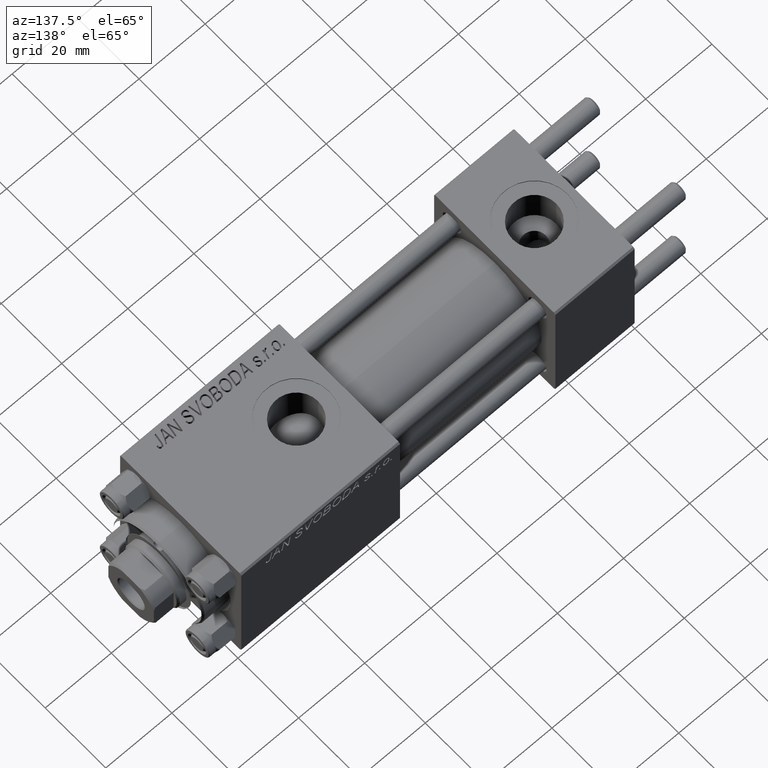
[diagram: clean part render]
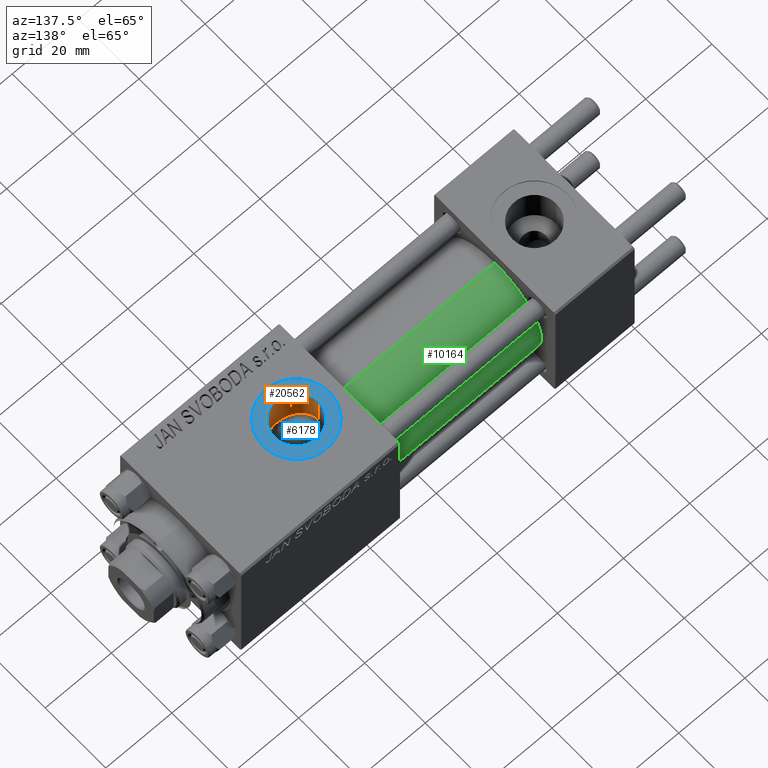
[diagram: same view with three faces highlighted in distinct colors, each labeled with its STEP entity id]
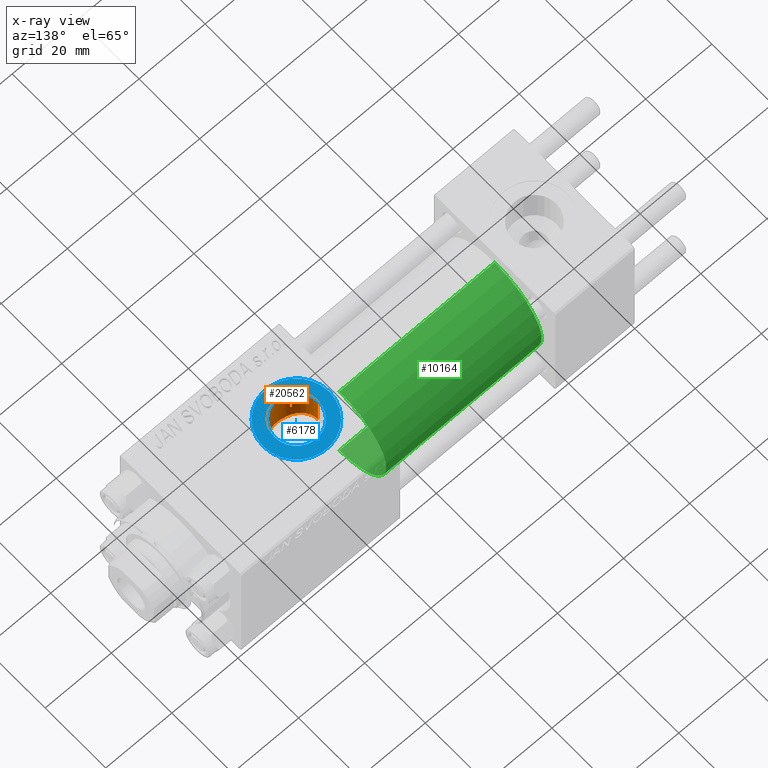
[diagram: x-ray of the same camera — body ghosted, the three highlighted faces saturated]
A machine part, auxiliary view with three faces highlighted in distinct colors.
The next image is the same camera in x-ray (body ghosted, the three faces saturated) — at least one of them is partly hidden behind the body in this view.
Their STEP definitions:

[orange] entity #20562 — the highlighted cylindrical surface (edge-blend (fillet) strip) has radius 6.58 mm, axis along (0, 0, -1).
#654 = CARTESIAN_POINT ( 'NONE',  ( 82.25327158685063011, -6.347078162380216604, 7.727766182684421281 ) ) ;
#1384 = CARTESIAN_POINT ( 'NONE',  ( 79.29730408322323854, -4.618177244596259889, 8.875509752877485781 ) ) ;
#1447 = CARTESIAN_POINT ( 'NONE',  ( 90.58000000000154728, -9.289058821376597120E-16, 42.80000000000000426 ) ) ;
#1591 = VECTOR ( 'NONE', #16905, 1000.000000000000000 ) ;
#2003 = CARTESIAN_POINT ( 'NONE',  ( 90.46247493449395449, -1.278752734038846484, 14.94875937294843737 ) ) ;
#2477 = EDGE_CURVE ( 'NONE', #19589, #5026, #33546, .T. ) ;
#2504 = CARTESIAN_POINT ( 'NONE',  ( 89.47667727346387778, -3.667500690329295931, 9.309199649381490360 ) ) ;
#3873 = VECTOR ( 'NONE', #13058, 1000.000000000000000 ) ;
#4184 = CARTESIAN_POINT ( 'NONE',  ( 89.01171256368644435, -4.281038711601321545, 9.043476487246550732 ) ) ;
#4424 = CARTESIAN_POINT ( 'NONE',  ( 81.50365122394816808, -6.100731835174567408, 7.925108619061488113 ) ) ;
#4915 = CARTESIAN_POINT ( 'NONE',  ( 85.83530013697877337, -6.321933289868085559, 7.748495657718812879 ) ) ;
#5026 = VERTEX_POINT ( 'NONE', #5954 ) ;
#5167 = CARTESIAN_POINT ( 'NONE',  ( 77.78468472322818172, -2.169203254887546617, 9.763745855050723677 ) ) ;
#5782 = CARTESIAN_POINT ( 'NONE',  ( 90.58000000000154728, 1.836897619300433381E-15, 15.00000000000000000 ) ) ;
#5954 = CARTESIAN_POINT ( 'NONE',  ( 77.41999999999846693, 1.225496641077837722E-15, 9.999999999999998224 ) ) ;
#6030 = CARTESIAN_POINT ( 'NONE',  ( 90.30000000000001137, -1.899052395280420136, 14.87930105885285670 ) ) ;
#6281 = CARTESIAN_POINT ( 'NONE',  ( 90.03601729897108896, -2.648259396322893089, 9.649752199410302822 ) ) ;
#6617 = CARTESIAN_POINT ( 'NONE',  ( 84.00000000000000000, -1.734723475976806897E-15, 42.80000000000000426 ) ) ;
#7120 = DIRECTION ( 'NONE',  ( 0.000000000000000000, 0.000000000000000000, -1.000000000000000000 ) ) ;
#7165 = EDGE_CURVE ( 'NONE', #47399, #32461, #40066, .T. ) ;
#7976 = CARTESIAN_POINT ( 'NONE',  ( 88.34134544482054707, -4.948221379670047604, 8.691185487698470880 ) ) ;
#8219 = CARTESIAN_POINT ( 'NONE',  ( 78.79875737437667738, -4.034886358906389248, 9.151392050136836431 ) ) ;
#8715 = CARTESIAN_POINT ( 'NONE',  ( 80.16020215073048405, -5.356874842517142632, 8.448716332623810388 ) ) ;
#8843 = AXIS2_PLACEMENT_3D ( 'NONE', #24237, #47433, #18409 ) ;
#9459 = VECTOR ( 'NONE', #48429, 1000.000000000000000 ) ;
#11614 = EDGE_CURVE ( 'NONE', #31403, #42262, #29018, .T. ) ;
#11650 = EDGE_CURVE ( 'NONE', #32461, #42262, #35703, .T. ) ;
#11829 = EDGE_CURVE ( 'NONE', #47399, #19589, #31399, .T. ) ;
#12255 = CARTESIAN_POINT ( 'NONE',  ( 78.91948560029506154, -4.185857250486422210, 9.083179932574980242 ) ) ;
#12495 = CARTESIAN_POINT ( 'NONE',  ( 83.43610688730976221, -6.558932760434257325, 7.548550817887899278 ) ) ;
#12742 = CARTESIAN_POINT ( 'NONE',  ( 77.45763783829498550, -0.8084208477571691587, 9.975121118623741623 ) ) ;
#13058 = DIRECTION ( 'NONE',  ( 0.000000000000000000, 0.000000000000000000, -1.000000000000000000 ) ) ;
#13167 = CARTESIAN_POINT ( 'NONE',  ( 90.58000000000154728, 1.836897619300433381E-15, 15.00000000000000000 ) ) ;
#13185 = B_SPLINE_CURVE_WITH_KNOTS ( 'NONE', 3,
 ( #30952, #17657, #6281, #21693, #2504, #4184, #31439, #7976, #20089, #23633, #20335, #31928, #23870, #24369, #43299, #4915, #31691, #35461, #47069, #19840, #46831, #12495, #47310, #23384, #35215, #654, #39012, #4424, #16049, #27895, #8715, #39758, #1384, #12255, #8219, #27658, #27165, #24116, #16299, #5167, #42810, #16789, #32176, #12742, #28155, #39502 ),
 .UNSPECIFIED., .F., .F.,
 ( 4, 2, 2, 2, 2, 2, 2, 2, 2, 2, 2, 2, 2, 2, 2, 2, 2, 2, 2, 2, 2, 2, 4 ),
 ( 0.000000000000000000, 0.001207791230099372441, 0.002415582460198744882, 0.003623373690298115155, 0.004227269305347786631, 0.004831164920397457672, 0.006038956150496800623, 0.006642851765546489880, 0.007246747380596180003, 0.008454538610695601017, 0.009058434225745329305, 0.009662329840795061062, 0.01026622545584479108, 0.01087012107089451937, 0.01207791230099397942, 0.01328570353109343946, 0.01449349476119290124, 0.01509739037624264514, 0.01570128599129239078, 0.01690907722139185429, 0.01751297283644158778, 0.01811686845149132127, 0.01932465968159079173 ),
 .UNSPECIFIED. ) ;
#13521 = CARTESIAN_POINT ( 'NONE',  ( 90.30000000000001137, -1.899052395280420136, 9.818024241158690657 ) ) ;
#13530 = ORIENTED_EDGE ( 'NONE', *, *, #23808, .T. ) ;
#16049 = CARTESIAN_POINT ( 'NONE',  ( 81.15150766959031614, -5.943877247083126925, 8.044991576418468071 ) ) ;
#16299 = CARTESIAN_POINT ( 'NONE',  ( 77.99714712711040931, -2.723766581249583485, 9.629423614267258458 ) ) ;
#16789 = CARTESIAN_POINT ( 'NONE',  ( 77.61241581301695192, -1.592248641449762747, 9.874366003595781649 ) ) ;
#16905 = DIRECTION ( 'NONE',  ( -0.000000000000000000, -0.000000000000000000, 1.000000000000000000 ) ) ;
#17657 = CARTESIAN_POINT ( 'NONE',  ( 90.18384735178129574, -2.284382302762963501, 9.743491762341799145 ) ) ;
#18234 = DIRECTION ( 'NONE',  ( -1.000000000000000000, 0.000000000000000000, 0.000000000000000000 ) ) ;
#18409 = DIRECTION ( 'NONE',  ( 1.000000000000000000, 0.000000000000000000, 0.000000000000000000 ) ) ;
#19203 = CARTESIAN_POINT ( 'NONE',  ( 90.58000000000154728, -9.289058821376599092E-16, 19.80000000000000071 ) ) ;
#19589 = VERTEX_POINT ( 'NONE', #27275 ) ;
#19840 = CARTESIAN_POINT ( 'NONE',  ( 84.04743762832036680, -6.582974628388996940, 7.527585999843090292 ) ) ;
#20089 = CARTESIAN_POINT ( 'NONE',  ( 88.19718467613775204, -5.071121963172631197, 8.619888602053425330 ) ) ;
#20335 = CARTESIAN_POINT ( 'NONE',  ( 87.74050804270864035, -5.416766998257490862, 8.406790300727948306 ) ) ;
#20562 = ADVANCED_FACE ( 'NONE', ( #30598 ), #22274, .F. ) ;
#21693 = CARTESIAN_POINT ( 'NONE',  ( 89.68316260257665817, -3.338928794743214468, 9.433056230293079381 ) ) ;
#22274 = CYLINDRICAL_SURFACE ( 'NONE', #46423, 6.580000000001542837 ) ;
#23112 = ORIENTED_EDGE ( 'NONE', *, *, #7165, .T. ) ;
#23384 = CARTESIAN_POINT ( 'NONE',  ( 82.83871781191031403, -6.479820246555592966, 7.616654439233103702 ) ) ;
#23633 = CARTESIAN_POINT ( 'NONE',  ( 87.89699318866286148, -5.305288046703262594, 8.477775428654018341 ) ) ;
#23808 = EDGE_CURVE ( 'NONE', #31403, #5026, #13185, .T. ) ;
#23867 = ORIENTED_EDGE ( 'NONE', *, *, #2477, .F. ) ;
#23870 = CARTESIAN_POINT ( 'NONE',  ( 86.92434068310684836, -5.907044672534588869, 8.071096920454994716 ) ) ;
#23913 = ORIENTED_EDGE ( 'NONE', *, *, #11614, .F. ) ;
#24116 = CARTESIAN_POINT ( 'NONE',  ( 78.16834223545102134, -3.071777053897142729, 9.522948337697433985 ) ) ;
#24237 = CARTESIAN_POINT ( 'NONE',  ( 84.00000000000000000, -1.734723475976806897E-15, 19.80000000000000071 ) ) ;
#24369 = CARTESIAN_POINT ( 'NONE',  ( 86.39211994537743067, -6.132805105780794186, 7.899218132206713427 ) ) ;
#27165 = CARTESIAN_POINT ( 'NONE',  ( 78.46622740148208663, -3.565203004854784474, 9.344512687240586146 ) ) ;
#27275 = CARTESIAN_POINT ( 'NONE',  ( 77.41999999999846693, -1.734723475976806897E-15, 19.80000000000000071 ) ) ;
#27658 = CARTESIAN_POINT ( 'NONE',  ( 78.57242859662287060, -3.724876030303978069, 9.281895439158068584 ) ) ;
#27895 = CARTESIAN_POINT ( 'NONE',  ( 80.48004077057568395, -5.572564248888139282, 8.306509127488531874 ) ) ;
#28155 = CARTESIAN_POINT ( 'NONE',  ( 77.41999999999848114, -0.4081853129699585803, 10.00000000000000711 ) ) ;
#28278 = CARTESIAN_POINT ( 'NONE',  ( 90.30000000000001137, -1.899052395280420136, 42.80000000000000426 ) ) ;
#29018 = LINE ( 'NONE', #28278, #1591 ) ;
#30598 = FACE_OUTER_BOUND ( 'NONE', #39731, .T. ) ;
#30952 = CARTESIAN_POINT ( 'NONE',  ( 90.30000000000001137, -1.899052395280420136, 9.818024241158690657 ) ) ;
#31399 = CIRCLE ( 'NONE', #8843, 6.580000000001542837 ) ;
#31403 = VERTEX_POINT ( 'NONE', #13521 ) ;
#31439 = CARTESIAN_POINT ( 'NONE',  ( 88.75695250607545006, -4.561896889324866144, 8.903678834413629062 ) ) ;
#31691 = CARTESIAN_POINT ( 'NONE',  ( 85.64143006621837628, -6.375121249720390182, 7.704616833470068649 ) ) ;
#31928 = CARTESIAN_POINT ( 'NONE',  ( 87.26053252520590320, -5.728070196491263921, 8.200680661955367157 ) ) ;
#32176 = CARTESIAN_POINT ( 'NONE',  ( 77.56705469300284506, -1.397686090543303283, 9.903818455115036556 ) ) ;
#32461 = VERTEX_POINT ( 'NONE', #13167 ) ;
#33047 = CARTESIAN_POINT ( 'NONE',  ( 77.41999999999846693, -1.734723475976806897E-15, 42.80000000000000426 ) ) ;
#33546 = LINE ( 'NONE', #33047, #9459 ) ;
#35215 = CARTESIAN_POINT ( 'NONE',  ( 82.64228046384747017, -6.441510615516904181, 7.649229527461429257 ) ) ;
#35299 = ORIENTED_EDGE ( 'NONE', *, *, #11829, .F. ) ;
#35461 = CARTESIAN_POINT ( 'NONE',  ( 85.05563542025694801, -6.507095227759212008, 7.594134426896898660 ) ) ;
#35703 = B_SPLINE_CURVE_WITH_KNOTS ( 'NONE', 3,
 ( #5782, #39625, #40121, #2003, #35829, #6030 ),
 .UNSPECIFIED., .F., .F.,
 ( 4, 2, 4 ),
 ( 0.001923267627926015643, 0.002881828648815649985, 0.003840389669705283893 ),
 .UNSPECIFIED. ) ;
#35829 = CARTESIAN_POINT ( 'NONE',  ( 90.39284622331669539, -1.591040247564623700, 14.91861279833453757 ) ) ;
#39012 = CARTESIAN_POINT ( 'NONE',  ( 82.06128195139868353, -6.290973204691355569, 7.773687993804112573 ) ) ;
#39502 = CARTESIAN_POINT ( 'NONE',  ( 77.41999999999846693, 1.225496641077837722E-15, 9.999999999999998224 ) ) ;
#39625 = CARTESIAN_POINT ( 'NONE',  ( 90.58000000000156149, -0.3230844264541308797, 14.99999999999999822 ) ) ;
#39731 = EDGE_LOOP ( 'NONE', ( #35299, #23112, #45428, #23913, #13530, #23867 ) ) ;
#39758 = CARTESIAN_POINT ( 'NONE',  ( 79.57031396582577543, -4.880372653833860319, 8.732632965334568453 ) ) ;
#40066 = LINE ( 'NONE', #1447, #3873 ) ;
#40121 = CARTESIAN_POINT ( 'NONE',  ( 90.55605924908761040, -0.6456608678150235203, 14.98945420583744870 ) ) ;
#42262 = VERTEX_POINT ( 'NONE', #47436 ) ;
#42810 = CARTESIAN_POINT ( 'NONE',  ( 77.72104259078042787, -1.977670684214428043, 9.804446867313098224 ) ) ;
#43299 = CARTESIAN_POINT ( 'NONE',  ( 86.21002104074251804, -6.200884946022790167, 7.845702732414576275 ) ) ;
#45428 = ORIENTED_EDGE ( 'NONE', *, *, #11650, .T. ) ;
#46423 = AXIS2_PLACEMENT_3D ( 'NONE', #6617, #7120, #18234 ) ;
#46831 = CARTESIAN_POINT ( 'NONE',  ( 83.84132420776212768, -6.581215419008478840, 7.529131557805247787 ) ) ;
#47069 = CARTESIAN_POINT ( 'NONE',  ( 84.65744280686338641, -6.559709605006789346, 7.547889352008899877 ) ) ;
#47310 = CARTESIAN_POINT ( 'NONE',  ( 83.23563096081821300, -6.538530929802691460, 7.566314066596407706 ) ) ;
#47399 = VERTEX_POINT ( 'NONE', #19203 ) ;
#47433 = DIRECTION ( 'NONE',  ( -0.000000000000000000, -0.000000000000000000, -1.000000000000000000 ) ) ;
#47436 = CARTESIAN_POINT ( 'NONE',  ( 90.30000000000001137, -1.899052395280420136, 14.87930105885285670 ) ) ;
#48429 = DIRECTION ( 'NONE',  ( 0.000000000000000000, 0.000000000000000000, -1.000000000000000000 ) ) ;

[blue] entity #6178 — the highlighted planar face has unit normal (0, 0, 1).
#152 = CARTESIAN_POINT ( 'NONE',  ( 84.00000000000000000, -1.734723475976806897E-15, 19.80000000000000071 ) ) ;
#644 = CIRCLE ( 'NONE', #32083, 10.00000000000154898 ) ;
#1235 = CARTESIAN_POINT ( 'NONE',  ( 84.00000000000000000, -1.734723475976806897E-15, 19.80000000000000071 ) ) ;
#3890 = DIRECTION ( 'NONE',  ( -0.000000000000000000, -0.000000000000000000, -1.000000000000000000 ) ) ;
#4232 = DIRECTION ( 'NONE',  ( 1.000000000000000000, 0.000000000000000000, 0.000000000000000000 ) ) ;
#4628 = EDGE_CURVE ( 'NONE', #20032, #7903, #644, .T. ) ;
#6178 = ADVANCED_FACE ( 'NONE', ( #26914, #38758 ), #15786, .T. ) ;
#7219 = DIRECTION ( 'NONE',  ( 0.000000000000000000, 0.000000000000000000, 1.000000000000000000 ) ) ;
#7903 = VERTEX_POINT ( 'NONE', #37840 ) ;
#8810 = DIRECTION ( 'NONE',  ( 1.000000000000000000, 0.000000000000000000, 0.000000000000000000 ) ) ;
#8843 = AXIS2_PLACEMENT_3D ( 'NONE', #24237, #47433, #18409 ) ;
#9705 = CIRCLE ( 'NONE', #29854, 6.580000000001542837 ) ;
#11829 = EDGE_CURVE ( 'NONE', #47399, #19589, #31399, .T. ) ;
#12799 = ORIENTED_EDGE ( 'NONE', *, *, #11829, .T. ) ;
#13543 = CARTESIAN_POINT ( 'NONE',  ( 73.99999999999845102, -5.100766768292640183E-16, 19.80000000000000071 ) ) ;
#15264 = DIRECTION ( 'NONE',  ( 1.000000000000000000, 0.000000000000000000, 0.000000000000000000 ) ) ;
#15786 = PLANE ( 'NONE',  #30547 ) ;
#18409 = DIRECTION ( 'NONE',  ( 1.000000000000000000, 0.000000000000000000, 0.000000000000000000 ) ) ;
#18831 = DIRECTION ( 'NONE',  ( 1.000000000000000000, 0.000000000000000000, -0.000000000000000000 ) ) ;
#19203 = CARTESIAN_POINT ( 'NONE',  ( 90.58000000000154728, -9.289058821376599092E-16, 19.80000000000000071 ) ) ;
#19589 = VERTEX_POINT ( 'NONE', #27275 ) ;
#19880 = EDGE_LOOP ( 'NONE', ( #44086, #12799 ) ) ;
#20032 = VERTEX_POINT ( 'NONE', #13543 ) ;
#21168 = DIRECTION ( 'NONE',  ( 0.000000000000000000, 0.000000000000000000, 1.000000000000000000 ) ) ;
#22097 = CARTESIAN_POINT ( 'NONE',  ( 84.00000000000000000, -1.734723475976806897E-15, 19.80000000000000071 ) ) ;
#24237 = CARTESIAN_POINT ( 'NONE',  ( 84.00000000000000000, -1.734723475976806897E-15, 19.80000000000000071 ) ) ;
#25009 = ORIENTED_EDGE ( 'NONE', *, *, #4628, .T. ) ;
#26914 = FACE_BOUND ( 'NONE', #19880, .T. ) ;
#27217 = CARTESIAN_POINT ( 'NONE',  ( 84.00000000000000000, -1.734723475976806897E-15, 19.80000000000000071 ) ) ;
#27275 = CARTESIAN_POINT ( 'NONE',  ( 77.41999999999846693, -1.734723475976806897E-15, 19.80000000000000071 ) ) ;
#29854 = AXIS2_PLACEMENT_3D ( 'NONE', #22097, #3890, #15264 ) ;
#30547 = AXIS2_PLACEMENT_3D ( 'NONE', #152, #7219, #18831 ) ;
#31078 = ORIENTED_EDGE ( 'NONE', *, *, #35058, .T. ) ;
#31399 = CIRCLE ( 'NONE', #8843, 6.580000000001542837 ) ;
#32083 = AXIS2_PLACEMENT_3D ( 'NONE', #1235, #21168, #8810 ) ;
#33884 = AXIS2_PLACEMENT_3D ( 'NONE', #27217, #35265, #4232 ) ;
#35058 = EDGE_CURVE ( 'NONE', #7903, #20032, #49185, .T. ) ;
#35265 = DIRECTION ( 'NONE',  ( 0.000000000000000000, 0.000000000000000000, 1.000000000000000000 ) ) ;
#35589 = EDGE_CURVE ( 'NONE', #19589, #47399, #9705, .T. ) ;
#37840 = CARTESIAN_POINT ( 'NONE',  ( 94.00000000000154898, -1.734723475976806897E-15, 19.80000000000000071 ) ) ;
#38758 = FACE_OUTER_BOUND ( 'NONE', #42806, .T. ) ;
#42806 = EDGE_LOOP ( 'NONE', ( #31078, #25009 ) ) ;
#44086 = ORIENTED_EDGE ( 'NONE', *, *, #35589, .T. ) ;
#47399 = VERTEX_POINT ( 'NONE', #19203 ) ;
#47433 = DIRECTION ( 'NONE',  ( -0.000000000000000000, -0.000000000000000000, -1.000000000000000000 ) ) ;
#49185 = CIRCLE ( 'NONE', #33884, 10.00000000000154898 ) ;

[green] entity #10164 — the highlighted cylindrical surface (partial cylindrical patch) has radius 15.5 mm, axis along (-1, -0, -0).
#488 = CARTESIAN_POINT ( 'NONE',  ( 24.00000000000000000, 0.000000000000000000, 0.000000000000000000 ) ) ;
#3769 = VECTOR ( 'NONE', #48712, 1000.000000000000000 ) ;
#5039 = VERTEX_POINT ( 'NONE', #25408 ) ;
#5146 = DIRECTION ( 'NONE',  ( 0.000000000000000000, 0.000000000000000000, 1.000000000000000000 ) ) ;
#5183 = CARTESIAN_POINT ( 'NONE',  ( 71.00000000000001421, 1.898202538678397557E-15, -15.50000000000000000 ) ) ;
#5506 = CARTESIAN_POINT ( 'NONE',  ( 71.00000000000001421, 0.000000000000000000, 0.000000000000000000 ) ) ;
#5816 = LINE ( 'NONE', #33326, #3769 ) ;
#6143 = CYLINDRICAL_SURFACE ( 'NONE', #34575, 15.50000000000000000 ) ;
#10164 = ADVANCED_FACE ( 'NONE', ( #32646 ), #6143, .T. ) ;
#13462 = ORIENTED_EDGE ( 'NONE', *, *, #22678, .F. ) ;
#13470 = DIRECTION ( 'NONE',  ( -1.000000000000000000, -0.000000000000000000, -0.000000000000000000 ) ) ;
#16634 = DIRECTION ( 'NONE',  ( 0.000000000000000000, 0.000000000000000000, -1.000000000000000000 ) ) ;
#17420 = AXIS2_PLACEMENT_3D ( 'NONE', #488, #48820, #29661 ) ;
#18623 = CARTESIAN_POINT ( 'NONE',  ( 71.00000000000001421, 0.000000000000000000, 15.50000000000000000 ) ) ;
#19128 = VECTOR ( 'NONE', #35947, 1000.000000000000000 ) ;
#20581 = CARTESIAN_POINT ( 'NONE',  ( 71.00000000000001421, 1.898202538678397557E-15, -15.50000000000000000 ) ) ;
#20904 = EDGE_CURVE ( 'NONE', #5039, #25404, #31236, .T. ) ;
#21057 = CARTESIAN_POINT ( 'NONE',  ( 71.00000000000001421, 0.000000000000000000, 0.000000000000000000 ) ) ;
#22678 = EDGE_CURVE ( 'NONE', #30214, #25404, #5816, .T. ) ;
#23908 = EDGE_CURVE ( 'NONE', #29233, #5039, #46585, .T. ) ;
#25404 = VERTEX_POINT ( 'NONE', #27493 ) ;
#25408 = CARTESIAN_POINT ( 'NONE',  ( 24.00000000000000000, 1.898202538678397557E-15, -15.50000000000000000 ) ) ;
#27493 = CARTESIAN_POINT ( 'NONE',  ( 24.00000000000000000, 0.000000000000000000, 15.50000000000000000 ) ) ;
#29191 = CIRCLE ( 'NONE', #46911, 15.50000000000000000 ) ;
#29233 = VERTEX_POINT ( 'NONE', #5183 ) ;
#29661 = DIRECTION ( 'NONE',  ( 0.000000000000000000, 0.000000000000000000, 1.000000000000000000 ) ) ;
#30214 = VERTEX_POINT ( 'NONE', #18623 ) ;
#31236 = CIRCLE ( 'NONE', #17420, 15.50000000000000000 ) ;
#32646 = FACE_OUTER_BOUND ( 'NONE', #36482, .T. ) ;
#33326 = CARTESIAN_POINT ( 'NONE',  ( 71.00000000000001421, 0.000000000000000000, 15.50000000000000000 ) ) ;
#34575 = AXIS2_PLACEMENT_3D ( 'NONE', #21057, #13470, #5146 ) ;
#35852 = ORIENTED_EDGE ( 'NONE', *, *, #48950, .F. ) ;
#35947 = DIRECTION ( 'NONE',  ( -1.000000000000000000, -0.000000000000000000, -0.000000000000000000 ) ) ;
#36482 = EDGE_LOOP ( 'NONE', ( #35852, #46837, #46131, #13462 ) ) ;
#40346 = DIRECTION ( 'NONE',  ( 1.000000000000000000, 0.000000000000000000, 0.000000000000000000 ) ) ;
#46131 = ORIENTED_EDGE ( 'NONE', *, *, #20904, .T. ) ;
#46585 = LINE ( 'NONE', #20581, #19128 ) ;
#46837 = ORIENTED_EDGE ( 'NONE', *, *, #23908, .T. ) ;
#46911 = AXIS2_PLACEMENT_3D ( 'NONE', #5506, #40346, #16634 ) ;
#48712 = DIRECTION ( 'NONE',  ( -1.000000000000000000, -0.000000000000000000, -0.000000000000000000 ) ) ;
#48820 = DIRECTION ( 'NONE',  ( 1.000000000000000000, 0.000000000000000000, 0.000000000000000000 ) ) ;
#48950 = EDGE_CURVE ( 'NONE', #29233, #30214, #29191, .T. ) ;